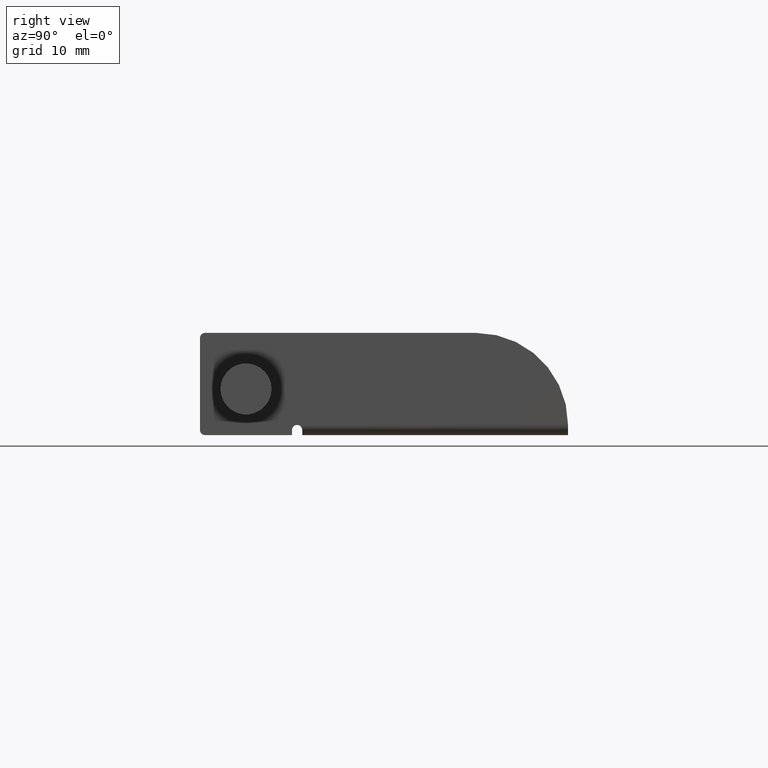
[diagram: clean part render]
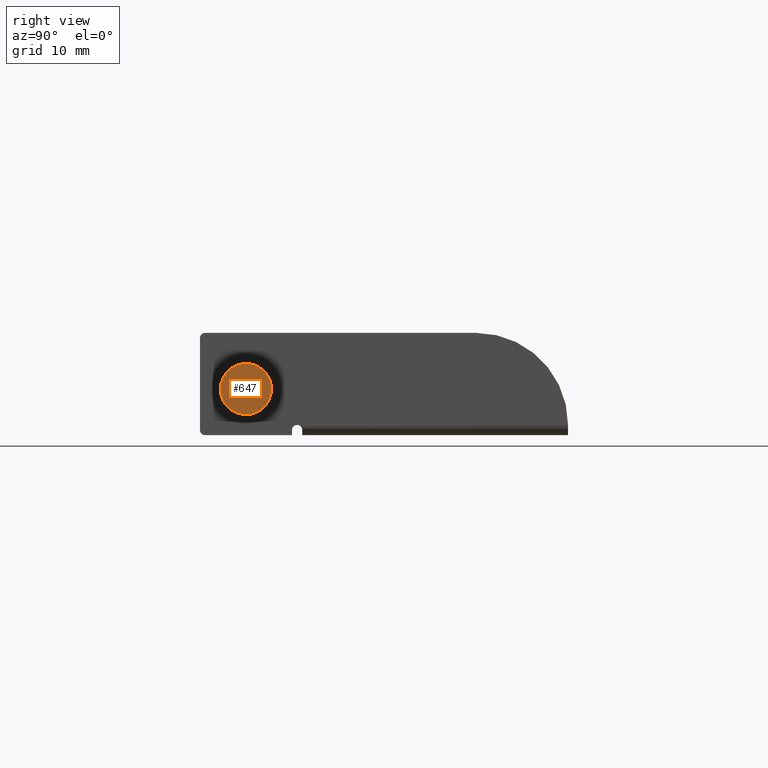
[diagram: same view with one face highlighted and labeled with its STEP entity id]
A machine part, right view. The second image highlights one B-rep face of the part: STEP entity #647.
In plain terms, the highlighted planar face has unit normal (-1, 0, 0).
Its self-contained STEP definition (entity closure, byte-faithful):
#178=FACE_OUTER_BOUND('',#226,.T.);
#226=EDGE_LOOP('',(#462));
#272=CIRCLE('',#692,2.5);
#306=VERTEX_POINT('',#985);
#366=EDGE_CURVE('',#306,#306,#272,.T.);
#462=ORIENTED_EDGE('',*,*,#366,.F.);
#620=PLANE('',#700);
#647=ADVANCED_FACE('',(#178),#620,.F.);
#692=AXIS2_PLACEMENT_3D('',#986,#782,#783);
#700=AXIS2_PLACEMENT_3D('',#997,#798,#799);
#782=DIRECTION('center_axis',(0.,1.,0.));
#783=DIRECTION('ref_axis',(1.,0.,0.));
#798=DIRECTION('center_axis',(0.,1.,0.));
#799=DIRECTION('ref_axis',(1.,0.,0.));
#985=CARTESIAN_POINT('',(-2.5,2.5,3.06161699786838E-16));
#986=CARTESIAN_POINT('Origin',(0.,2.5,0.));
#997=CARTESIAN_POINT('Origin',(0.,2.5,0.));